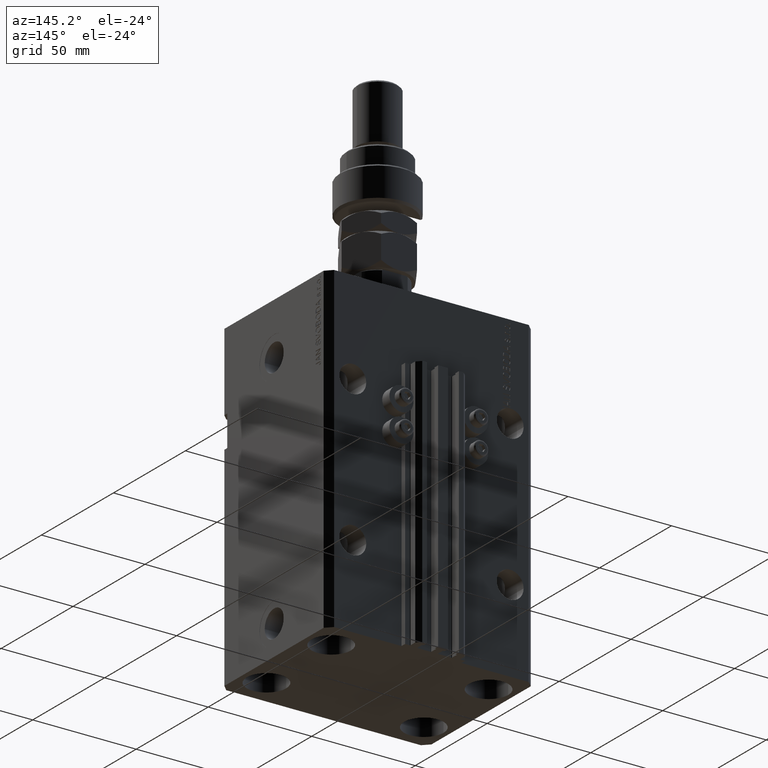
[diagram: clean part render]
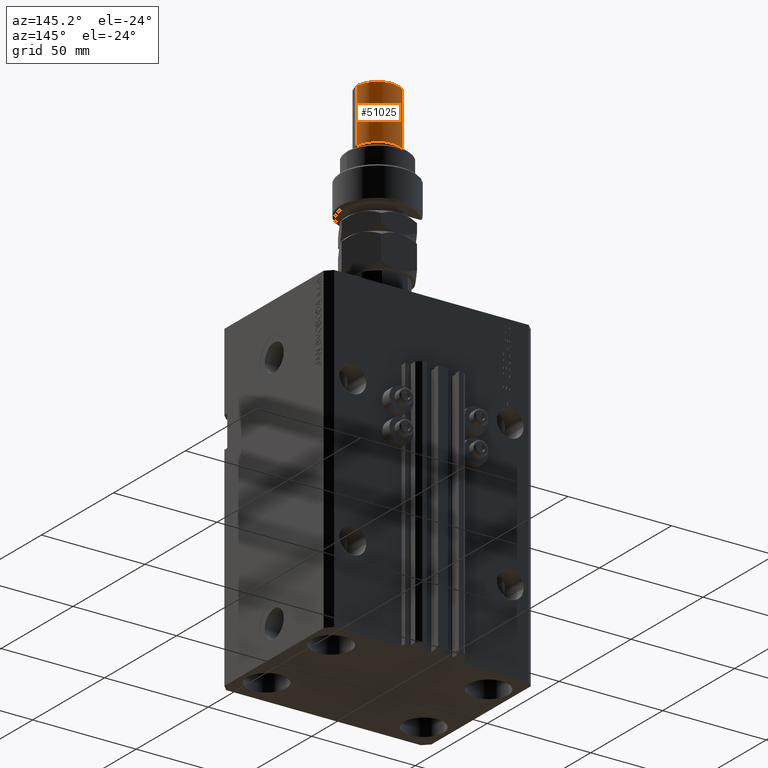
[diagram: same view with one face highlighted and labeled with its STEP entity id]
A machine part, auxiliary view. The second image highlights one B-rep face of the part: STEP entity #51025.
In plain terms, the highlighted cylindrical surface (edge-blend (fillet) strip) has radius 10 mm, axis along (-0, -0, -1).
Its self-contained STEP definition (entity closure, byte-faithful):
#2462 = CARTESIAN_POINT ( 'NONE',  ( 10.00000000000000000, 1.224646799147353256E-15, 54.99999999999998579 ) ) ;
#3541 = VECTOR ( 'NONE', #7888, 1000.000000000000000 ) ;
#4667 = CARTESIAN_POINT ( 'NONE',  ( 10.00000000000000000, 1.224646799147353256E-15, 29.00000000000000711 ) ) ;
#6728 = ORIENTED_EDGE ( 'NONE', *, *, #28945, .F. ) ;
#7888 = DIRECTION ( 'NONE',  ( -0.000000000000000000, -0.000000000000000000, -1.000000000000000000 ) ) ;
#9018 = DIRECTION ( 'NONE',  ( -1.000000000000000000, 0.000000000000000000, 0.000000000000000000 ) ) ;
#10730 = VERTEX_POINT ( 'NONE', #4667 ) ;
#11523 = DIRECTION ( 'NONE',  ( -0.000000000000000000, -0.000000000000000000, -1.000000000000000000 ) ) ;
#12638 = CYLINDRICAL_SURFACE ( 'NONE', #49745, 10.00000000000000000 ) ;
#13393 = CARTESIAN_POINT ( 'NONE',  ( 0.000000000000000000, 0.000000000000000000, 56.00000000000000711 ) ) ;
#13465 = EDGE_CURVE ( 'NONE', #10730, #39091, #48946, .T. ) ;
#15062 = VERTEX_POINT ( 'NONE', #19091 ) ;
#16136 = CARTESIAN_POINT ( 'NONE',  ( 10.00000000000000000, 1.224646799147353256E-15, 56.00000000000000711 ) ) ;
#16918 = CARTESIAN_POINT ( 'NONE',  ( 0.000000000000000000, 0.000000000000000000, 29.00000000000000711 ) ) ;
#19091 = CARTESIAN_POINT ( 'NONE',  ( -10.00000000000000000, 0.000000000000000000, 54.99999999999998579 ) ) ;
#19361 = EDGE_CURVE ( 'NONE', #15062, #31007, #39281, .T. ) ;
#23991 = DIRECTION ( 'NONE',  ( 0.000000000000000000, 0.000000000000000000, -1.000000000000000000 ) ) ;
#24745 = CARTESIAN_POINT ( 'NONE',  ( 0.000000000000000000, 0.000000000000000000, 54.99999999999998579 ) ) ;
#26758 = CARTESIAN_POINT ( 'NONE',  ( -10.00000000000000000, 0.000000000000000000, 56.00000000000000711 ) ) ;
#28945 = EDGE_CURVE ( 'NONE', #15062, #39091, #50012, .T. ) ;
#29270 = DIRECTION ( 'NONE',  ( 1.000000000000000000, 0.000000000000000000, 0.000000000000000000 ) ) ;
#31007 = VERTEX_POINT ( 'NONE', #2462 ) ;
#31971 = EDGE_LOOP ( 'NONE', ( #33536, #36534, #49499, #6728 ) ) ;
#33536 = ORIENTED_EDGE ( 'NONE', *, *, #19361, .T. ) ;
#34937 = AXIS2_PLACEMENT_3D ( 'NONE', #16918, #48396, #29270 ) ;
#35887 = DIRECTION ( 'NONE',  ( 1.000000000000000000, 0.000000000000000000, 0.000000000000000000 ) ) ;
#36534 = ORIENTED_EDGE ( 'NONE', *, *, #50320, .T. ) ;
#39091 = VERTEX_POINT ( 'NONE', #39422 ) ;
#39281 = CIRCLE ( 'NONE', #41754, 10.00000000000000000 ) ;
#39422 = CARTESIAN_POINT ( 'NONE',  ( -10.00000000000000000, 0.000000000000000000, 29.00000000000000711 ) ) ;
#41754 = AXIS2_PLACEMENT_3D ( 'NONE', #24745, #23991, #35887 ) ;
#44002 = LINE ( 'NONE', #16136, #3541 ) ;
#48261 = DIRECTION ( 'NONE',  ( -0.000000000000000000, -0.000000000000000000, -1.000000000000000000 ) ) ;
#48396 = DIRECTION ( 'NONE',  ( -0.000000000000000000, -0.000000000000000000, 1.000000000000000000 ) ) ;
#48763 = FACE_OUTER_BOUND ( 'NONE', #31971, .T. ) ;
#48946 = CIRCLE ( 'NONE', #34937, 10.00000000000000000 ) ;
#49499 = ORIENTED_EDGE ( 'NONE', *, *, #13465, .T. ) ;
#49745 = AXIS2_PLACEMENT_3D ( 'NONE', #13393, #48261, #9018 ) ;
#50012 = LINE ( 'NONE', #26758, #51094 ) ;
#50320 = EDGE_CURVE ( 'NONE', #31007, #10730, #44002, .T. ) ;
#51025 = ADVANCED_FACE ( 'NONE', ( #48763 ), #12638, .T. ) ;
#51094 = VECTOR ( 'NONE', #11523, 1000.000000000000000 ) ;